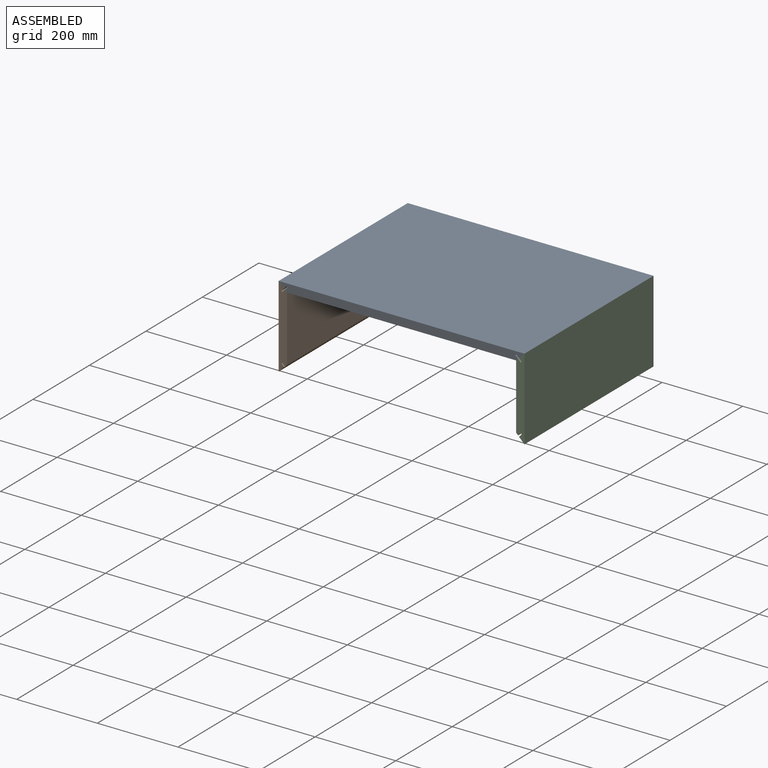
[diagram: assembled view]
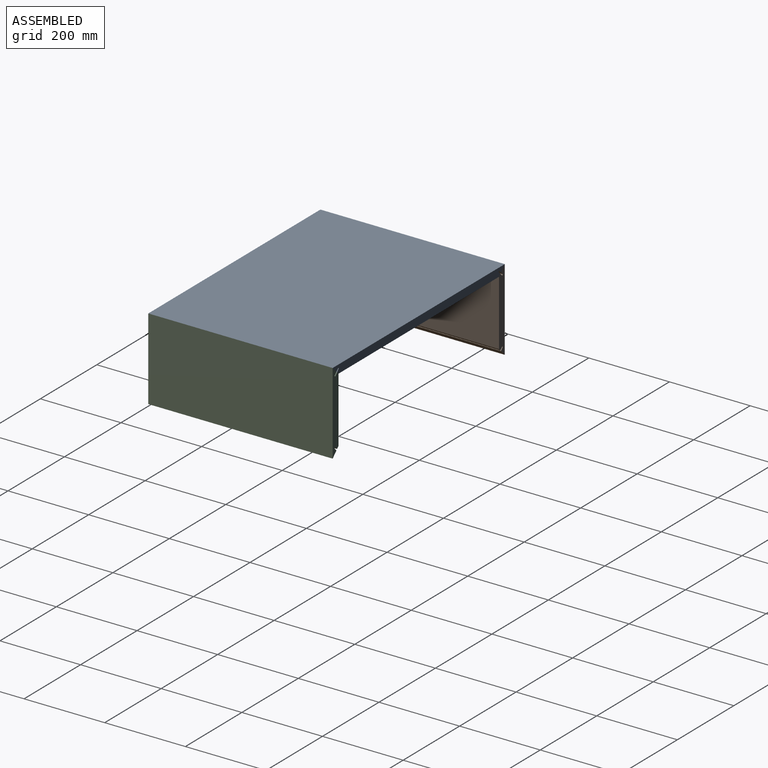
[diagram: assembled view, second angle]
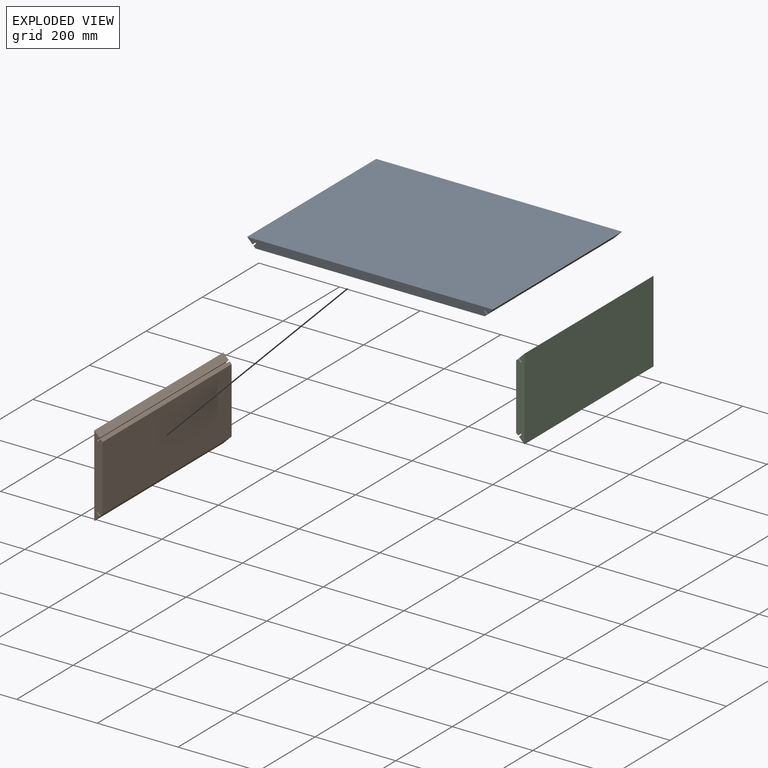
[diagram: exploded view]
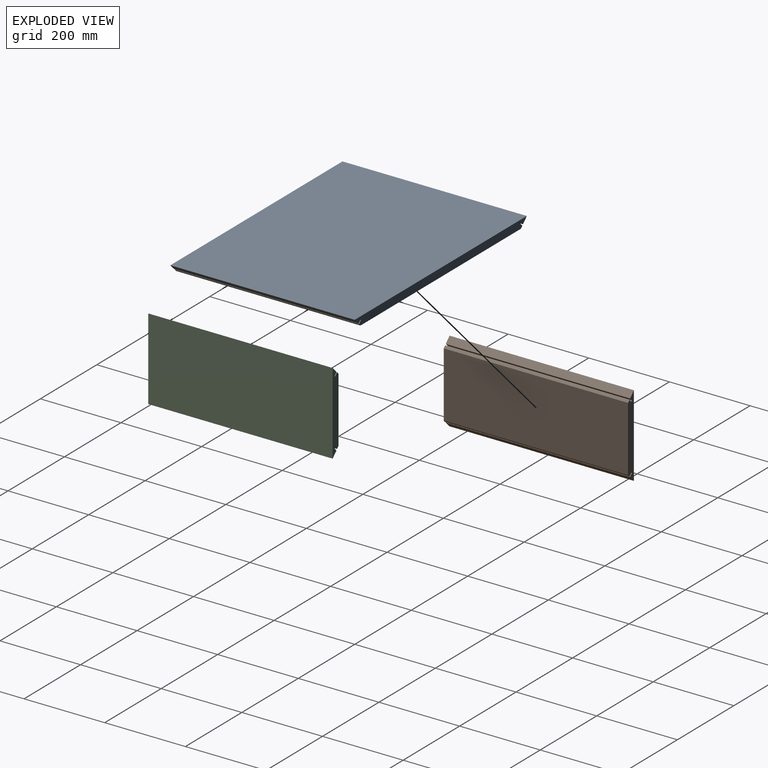
[diagram: exploded view, second angle]
ASSEMBLY  parts=3 mates=6
PART A: 14 faces, bbox 609.6x457.2x20.6 mm
  f0: plane 457.2x13.47mm, normal (-0.71,0,-0.71), area 8709.7mm2, adj f2,f3,f4,f13
  f1: plane 457.2x4.92mm, normal (0.71,0,-0.71), area 3182.5mm2, adj f2,f3,f5,f10
  f2: plane 609.6x20.64mm, normal (0,-1,0), area 12094.2mm2, adj f0,f1,f4,f5,f6,f7,f8,f9
  f3: plane 609.6x20.64mm, normal (0,1,0), area 12094.2mm2, adj f0,f1,f4,f5,f6,f7,f8,f9
  f4: plane 609.6x457.2mm, normal (0,0,1), area 278709.1mm2, adj f0,f2,f3,f7
  f5: plane 568.33x457.2mm, normal (0,0,-1), area 259838.2mm2, adj f1,f2,f3,f6
  f6: plane 457.2x4.92mm, normal (-0.71,0,-0.71), area 3182.5mm2, adj f2,f3,f5,f11
  f7: plane 457.2x13.47mm, normal (0.71,0,-0.71), area 8709.7mm2, adj f2,f3,f4,f8
  f8: plane 457.2x6.74mm, normal (-0.71,0,-0.71), area 4354.8mm2, adj f2,f3,f7,f9
  f9: plane 457.2x2.25mm, normal (0.71,0,-0.71), area 1451.6mm2, adj f2,f3,f8,f10
  f10: plane 457.2x6.74mm, normal (0.71,0,0.71), area 4354.8mm2, adj f1,f2,f3,f9
  f11: plane 457.2x6.74mm, normal (-0.71,0,0.71), area 4354.8mm2, adj f2,f3,f6,f12
  f12: plane 457.2x2.25mm, normal (-0.71,0,-0.71), area 1451.6mm2, adj f2,f3,f11,f13
  f13: plane 457.2x6.74mm, normal (0.71,0,-0.71), area 4354.8mm2, adj f0,f2,f3,f12
PART B: 14 faces, bbox 20.6x457.2x203.2 mm
  f0: plane 457.2x13.47mm, normal (0.71,0,-0.71), area 8709.7mm2, adj f1,f3,f5,f13
  f1: plane 203.2x20.64mm, normal (0,-1,0), area 3707.1mm2, adj f0,f2,f4,f5,f6,f7,f8,f9
  f2: plane 457.2x4.92mm, normal (0.71,0,0.71), area 3182.5mm2, adj f1,f3,f4,f9
  f3: plane 203.2x20.64mm, normal (0,1,0), area 3707.1mm2, adj f0,f2,f4,f5,f6,f7,f8,f9
  f4: plane 457.2x161.93mm, normal (1,0,0), area 74032.1mm2, adj f1,f2,f3,f10
  f5: plane 457.2x203.2mm, normal (-1,0,0), area 92903mm2, adj f0,f1,f3,f6
  f6: plane 457.2x13.47mm, normal (0.71,0,0.71), area 8709.7mm2, adj f1,f3,f5,f7
  f7: plane 457.2x6.74mm, normal (0.71,0,-0.71), area 4354.8mm2, adj f1,f3,f6,f8
  f8: plane 457.2x2.25mm, normal (0.71,0,0.71), area 1451.6mm2, adj f1,f3,f7,f9
  f9: plane 457.2x6.74mm, normal (-0.71,0,0.71), area 4354.8mm2, adj f1,f2,f3,f8
  f10: plane 457.2x4.92mm, normal (0.71,0,-0.71), area 3182.5mm2, adj f1,f3,f4,f11
  f11: plane 457.2x6.74mm, normal (-0.71,0,-0.71), area 4354.8mm2, adj f1,f3,f10,f12
  f12: plane 457.2x2.25mm, normal (0.71,0,-0.71), area 1451.6mm2, adj f1,f3,f11,f13
  f13: plane 457.2x6.74mm, normal (0.71,0,0.71), area 4354.8mm2, adj f0,f1,f3,f12
PART C: same geometry as B
PLACE A t=(14.28,0,14.28)mm fixed
PLACE B t=(-290.52,0,-66.68)mm
PLACE C rot(axis=(0,0,-1),180deg) t=(319.08,0,-66.68)mm
MATE planar C.f6 <-> A.f7  axis (-0.71,0,0.71) through (312.35,0,28.19)mm
MATE planar C.f9 <-> A.f10  axis (0.71,0,0.71) through (306.74,0,15.84)mm
MATE planar B.f9 <-> A.f11  axis (-0.71,0,0.71) through (-278.17,0,15.84)mm
MATE planar B.f6 <-> A.f0  axis (0.71,0,0.71) through (-283.78,0,28.19)mm
MATE planar C.f3 <-> A.f2  axis (0,-1,0) through (309.18,-228.6,-66.68)mm
MATE planar B.f1 <-> A.f2  axis (0,-1,0) through (-280.61,-228.6,-66.68)mm
